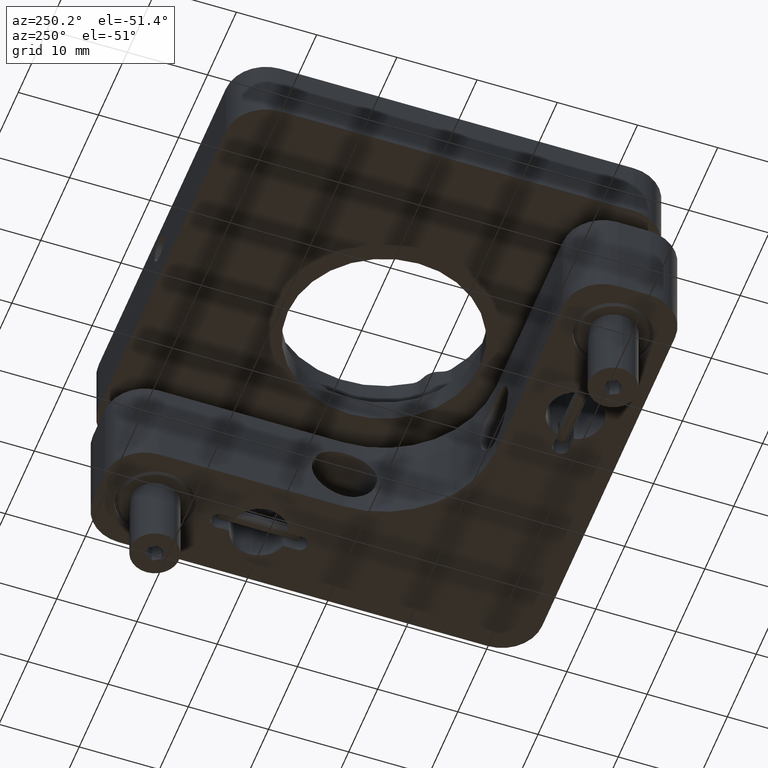
[diagram: clean part render]
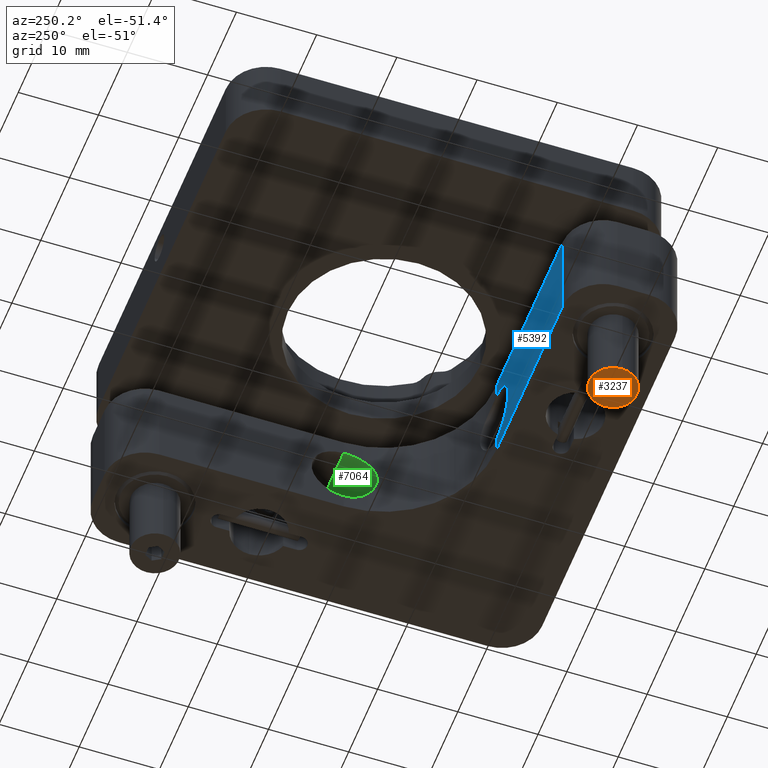
[diagram: same view with three faces highlighted in distinct colors, each labeled with its STEP entity id]
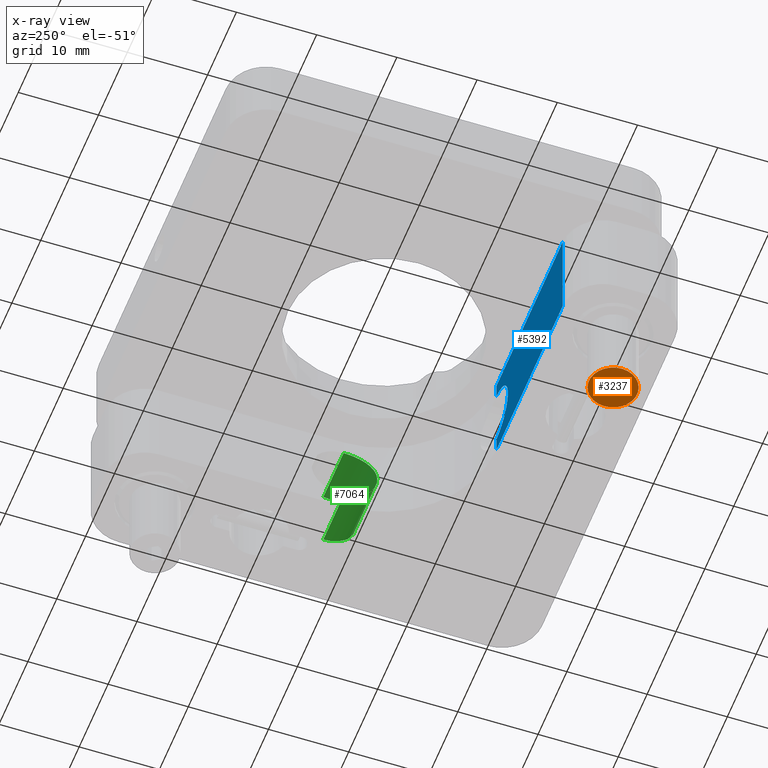
[diagram: x-ray of the same camera — body ghosted, the three highlighted faces saturated]
A machine part, auxiliary view with three faces highlighted in distinct colors.
The next image is the same camera in x-ray (body ghosted, the three faces saturated) — at least one of them is partly hidden behind the body in this view.
Their STEP definitions:

[orange] entity #3237 — the highlighted planar face has unit normal (0, -0, 1).
#194 = ORIENTED_EDGE ( 'NONE', *, *, #6239, .F. ) ;
#302 = CARTESIAN_POINT ( 'NONE',  ( -21.54732577608398714, -22.01674373770747906, -25.00041507641942573 ) ) ;
#385 = ORIENTED_EDGE ( 'NONE', *, *, #10376, .F. ) ;
#439 = DIRECTION ( 'NONE',  ( -0.5255587901632401415, 0.8507572850596998304, 2.996730767475920952E-16 ) ) ;
#499 = ORIENTED_EDGE ( 'NONE', *, *, #12246, .F. ) ;
#1207 = DIRECTION ( 'NONE',  ( -0.4739980262347597839, -0.8805259059934308352, -2.429688183113096349E-17 ) ) ;
#1275 = DIRECTION ( 'NONE',  ( -0.9995568163979993148, -0.02976862093373094931, 2.753761949164609561E-16 ) ) ;
#1389 = CARTESIAN_POINT ( 'NONE',  ( -21.00000000000000711, -20.99999999999998224, -25.00041507641942573 ) ) ;
#1980 = EDGE_CURVE ( 'NONE', #8191, #5781, #13173, .T. ) ;
#2049 = EDGE_CURVE ( 'NONE', #2216, #8191, #7707, .T. ) ;
#2216 = VERTEX_POINT ( 'NONE', #5864 ) ;
#2459 = LINE ( 'NONE', #10931, #12884 ) ;
#2724 = AXIS2_PLACEMENT_3D ( 'NONE', #4250, #8492, #5244 ) ;
#2755 = EDGE_LOOP ( 'NONE', ( #499, #12009, #8844, #194, #12710, #5176 ) ) ;
#2797 = CARTESIAN_POINT ( 'NONE',  ( -22.15418879403543073, -21.03437384261897236, -25.00041507641942573 ) ) ;
#2892 = CIRCLE ( 'NONE', #3351, 3.000000000000001776 ) ;
#3010 = VECTOR ( 'NONE', #439, 1000.000000000000000 ) ;
#3237 = ADVANCED_FACE ( 'NONE', ( #8559, #6356 ), #8428, .F. ) ;
#3298 = CARTESIAN_POINT ( 'NONE',  ( -19.84581120596458703, -20.96562615738099922, -25.00041507641942573 ) ) ;
#3345 = DIRECTION ( 'NONE',  ( 0.9995568163979994258, 0.02976862093373095972, 0.000000000000000000 ) ) ;
#3351 = AXIS2_PLACEMENT_3D ( 'NONE', #4668, #11827, #8899 ) ;
#3582 = EDGE_LOOP ( 'NONE', ( #4848, #385 ) ) ;
#3773 = VECTOR ( 'NONE', #1207, 999.9999999999998863 ) ;
#4186 = VERTEX_POINT ( 'NONE', #8389 ) ;
#4250 = CARTESIAN_POINT ( 'NONE',  ( -21.00000000000000711, -20.99999999999998224, -25.00041507641942573 ) ) ;
#4383 = CARTESIAN_POINT ( 'NONE',  ( -20.39313698204856706, -21.98236989508849248, -25.00041507641942573 ) ) ;
#4599 = EDGE_CURVE ( 'NONE', #4186, #12852, #2892, .T. ) ;
#4668 = CARTESIAN_POINT ( 'NONE',  ( -21.00000000000000711, -20.99999999999998224, -25.00041507641942573 ) ) ;
#4848 = ORIENTED_EDGE ( 'NONE', *, *, #4599, .F. ) ;
#5109 = VECTOR ( 'NONE', #11137, 1000.000000000000114 ) ;
#5176 = ORIENTED_EDGE ( 'NONE', *, *, #13100, .F. ) ;
#5244 = DIRECTION ( 'NONE',  ( 0.9995568163979993148, 0.02976862093373113666, -2.753761949164609068E-16 ) ) ;
#5470 = VECTOR ( 'NONE', #5618, 1000.000000000000000 ) ;
#5618 = DIRECTION ( 'NONE',  ( 0.4739980262347597284, 0.8805259059934308352, 2.429688183113096657E-17 ) ) ;
#5672 = LINE ( 'NONE', #9885, #5109 ) ;
#5768 = DIRECTION ( 'NONE',  ( 0.5255587901632398085, -0.8507572850597000524, -2.996730767475919966E-16 ) ) ;
#5781 = VERTEX_POINT ( 'NONE', #12063 ) ;
#5864 = CARTESIAN_POINT ( 'NONE',  ( -21.54732577608398714, -22.01674373770747906, -25.00041507641942573 ) ) ;
#6239 = EDGE_CURVE ( 'NONE', #11110, #2216, #2459, .T. ) ;
#6326 = EDGE_CURVE ( 'NONE', #10713, #11110, #7762, .T. ) ;
#6356 = FACE_OUTER_BOUND ( 'NONE', #3582, .T. ) ;
#7210 = CARTESIAN_POINT ( 'NONE',  ( -20.45267422391602707, -19.98325626229249252, -25.00041507641942573 ) ) ;
#7707 = LINE ( 'NONE', #302, #3010 ) ;
#7737 = DIRECTION ( 'NONE',  ( 2.808221988872256027E-16, -1.787636783372001058E-16, 1.000000000000000000 ) ) ;
#7762 = LINE ( 'NONE', #3298, #3773 ) ;
#8191 = VERTEX_POINT ( 'NONE', #2797 ) ;
#8224 = VECTOR ( 'NONE', #5768, 1000.000000000000000 ) ;
#8389 = CARTESIAN_POINT ( 'NONE',  ( -18.00132955080600894, -20.91069413719879222, -25.00041507641942573 ) ) ;
#8428 = PLANE ( 'NONE',  #2724 ) ;
#8492 = DIRECTION ( 'NONE',  ( 2.808221988872250604E-16, -1.787636783372001304E-16, 1.000000000000000000 ) ) ;
#8559 = FACE_BOUND ( 'NONE', #2755, .T. ) ;
#8844 = ORIENTED_EDGE ( 'NONE', *, *, #2049, .F. ) ;
#8899 = DIRECTION ( 'NONE',  ( 0.9995568163979994258, 0.02976862093373095972, 0.000000000000000000 ) ) ;
#9833 = CARTESIAN_POINT ( 'NONE',  ( -22.15418879403543073, -21.03437384261897236, -25.00041507641942573 ) ) ;
#9850 = CARTESIAN_POINT ( 'NONE',  ( -20.45267422391602707, -19.98325626229249252, -25.00041507641942573 ) ) ;
#9885 = CARTESIAN_POINT ( 'NONE',  ( -21.60686301795145070, -20.01763010491147909, -25.00041507641942573 ) ) ;
#10376 = EDGE_CURVE ( 'NONE', #12852, #4186, #13719, .T. ) ;
#10713 = VERTEX_POINT ( 'NONE', #12156 ) ;
#10931 = CARTESIAN_POINT ( 'NONE',  ( -20.39313698204856706, -21.98236989508849248, -25.00041507641942573 ) ) ;
#10983 = CARTESIAN_POINT ( 'NONE',  ( -23.99867044919400527, -21.08930586280117936, -25.00041507641942573 ) ) ;
#11110 = VERTEX_POINT ( 'NONE', #4383 ) ;
#11137 = DIRECTION ( 'NONE',  ( 0.9995568163979993148, 0.02976862093373113666, -2.753761949164609068E-16 ) ) ;
#11669 = VERTEX_POINT ( 'NONE', #7210 ) ;
#11827 = DIRECTION ( 'NONE',  ( 2.808221988872256027E-16, -1.787636783372001058E-16, 1.000000000000000000 ) ) ;
#12009 = ORIENTED_EDGE ( 'NONE', *, *, #1980, .F. ) ;
#12063 = CARTESIAN_POINT ( 'NONE',  ( -21.60686301795145070, -20.01763010491147909, -25.00041507641942573 ) ) ;
#12156 = CARTESIAN_POINT ( 'NONE',  ( -19.84581120596458703, -20.96562615738099922, -25.00041507641942573 ) ) ;
#12246 = EDGE_CURVE ( 'NONE', #5781, #11669, #5672, .T. ) ;
#12383 = AXIS2_PLACEMENT_3D ( 'NONE', #1389, #7737, #3345 ) ;
#12710 = ORIENTED_EDGE ( 'NONE', *, *, #6326, .F. ) ;
#12852 = VERTEX_POINT ( 'NONE', #10983 ) ;
#12884 = VECTOR ( 'NONE', #1275, 1000.000000000000114 ) ;
#12923 = LINE ( 'NONE', #9850, #8224 ) ;
#13100 = EDGE_CURVE ( 'NONE', #11669, #10713, #12923, .T. ) ;
#13173 = LINE ( 'NONE', #9833, #5470 ) ;
#13719 = CIRCLE ( 'NONE', #12383, 3.000000000000001776 ) ;

[blue] entity #5392 — the highlighted planar face has unit normal (0, 1, 0).
#323 = FACE_OUTER_BOUND ( 'NONE', #9322, .T. ) ;
#416 = CARTESIAN_POINT ( 'NONE',  ( -22.99999999999995381, -14.00000000000000178, -15.00000000000000355 ) ) ;
#849 = CARTESIAN_POINT ( 'NONE',  ( -3.003590182049984513E-17, -14.00000000000000000, -15.00000000000000355 ) ) ;
#2157 = VECTOR ( 'NONE', #13666, 1000.000000000000000 ) ;
#2203 = CARTESIAN_POINT ( 'NONE',  ( -22.99999999999995381, -14.00000000000000178, -15.00000000000000355 ) ) ;
#2739 = ORIENTED_EDGE ( 'NONE', *, *, #6044, .T. ) ;
#3023 = LINE ( 'NONE', #3169, #5780 ) ;
#3124 = ORIENTED_EDGE ( 'NONE', *, *, #11325, .F. ) ;
#3169 = CARTESIAN_POINT ( 'NONE',  ( -22.99999999999995381, -14.00000000000000000, -15.00000000000000355 ) ) ;
#3172 = CARTESIAN_POINT ( 'NONE',  ( -3.003590182049984513E-17, -14.00000000000000000, -3.000000000000002665 ) ) ;
#3363 = AXIS2_PLACEMENT_3D ( 'NONE', #7799, #12017, #5505 ) ;
#3527 = VECTOR ( 'NONE', #7312, 1000.000000000000000 ) ;
#3584 = EDGE_CURVE ( 'NONE', #9246, #3587, #6262, .T. ) ;
#3587 = VERTEX_POINT ( 'NONE', #12643 ) ;
#3850 = LINE ( 'NONE', #849, #5980 ) ;
#3973 = DIRECTION ( 'NONE',  ( 0.000000000000000000, 0.000000000000000000, 1.000000000000000000 ) ) ;
#4013 = CARTESIAN_POINT ( 'NONE',  ( -22.99999999999995381, -14.00000000000000000, -3.000000000000002665 ) ) ;
#4312 = ORIENTED_EDGE ( 'NONE', *, *, #11887, .F. ) ;
#4490 = VECTOR ( 'NONE', #7163, 1000.000000000000000 ) ;
#4573 = PLANE ( 'NONE',  #3363 ) ;
#4585 = VERTEX_POINT ( 'NONE', #10784 ) ;
#5175 = DIRECTION ( 'NONE',  ( -0.000000000000000000, -1.000000000000000000, -0.000000000000000000 ) ) ;
#5209 = LINE ( 'NONE', #2203, #2157 ) ;
#5312 = ORIENTED_EDGE ( 'NONE', *, *, #3584, .F. ) ;
#5392 = ADVANCED_FACE ( 'NONE', ( #323 ), #4573, .T. ) ;
#5505 = DIRECTION ( 'NONE',  ( 0.000000000000000000, -0.000000000000000000, 1.000000000000000000 ) ) ;
#5542 = CARTESIAN_POINT ( 'NONE',  ( -3.003590182049984513E-17, -13.99999999999999822, -13.00000000000000355 ) ) ;
#5780 = VECTOR ( 'NONE', #9272, 1000.000000000000000 ) ;
#5980 = VECTOR ( 'NONE', #13450, 1000.000000000000000 ) ;
#6044 = EDGE_CURVE ( 'NONE', #4585, #9726, #3023, .T. ) ;
#6262 = LINE ( 'NONE', #4013, #4490 ) ;
#7163 = DIRECTION ( 'NONE',  ( -1.000000000000000000, -0.000000000000000000, -0.000000000000000000 ) ) ;
#7312 = DIRECTION ( 'NONE',  ( 0.000000000000000000, 0.000000000000000000, 1.000000000000000000 ) ) ;
#7530 = CIRCLE ( 'NONE', #8617, 4.000000000000000000 ) ;
#7799 = CARTESIAN_POINT ( 'NONE',  ( -22.99999999999995381, -14.00000000000000000, -15.00000000000000355 ) ) ;
#8429 = CARTESIAN_POINT ( 'NONE',  ( -3.003590182049984513E-17, -13.99999999999999822, -9.000000000000003553 ) ) ;
#8517 = EDGE_CURVE ( 'NONE', #9726, #3587, #5209, .T. ) ;
#8617 = AXIS2_PLACEMENT_3D ( 'NONE', #8429, #5175, #3973 ) ;
#9246 = VERTEX_POINT ( 'NONE', #3172 ) ;
#9272 = DIRECTION ( 'NONE',  ( -1.000000000000000000, -0.000000000000000000, -0.000000000000000000 ) ) ;
#9322 = EDGE_LOOP ( 'NONE', ( #4312, #13768, #3124, #2739, #12286, #5312 ) ) ;
#9436 = VERTEX_POINT ( 'NONE', #5542 ) ;
#9726 = VERTEX_POINT ( 'NONE', #416 ) ;
#10009 = LINE ( 'NONE', #13623, #3527 ) ;
#10272 = EDGE_CURVE ( 'NONE', #12026, #9436, #7530, .T. ) ;
#10668 = CARTESIAN_POINT ( 'NONE',  ( -3.003590182049984513E-17, -13.99999999999999822, -5.000000000000002665 ) ) ;
#10784 = CARTESIAN_POINT ( 'NONE',  ( -3.003590182049984513E-17, -14.00000000000000000, -15.00000000000000355 ) ) ;
#11325 = EDGE_CURVE ( 'NONE', #4585, #9436, #10009, .T. ) ;
#11887 = EDGE_CURVE ( 'NONE', #12026, #9246, #3850, .T. ) ;
#12017 = DIRECTION ( 'NONE',  ( 0.000000000000000000, 1.000000000000000000, 0.000000000000000000 ) ) ;
#12026 = VERTEX_POINT ( 'NONE', #10668 ) ;
#12286 = ORIENTED_EDGE ( 'NONE', *, *, #8517, .T. ) ;
#12643 = CARTESIAN_POINT ( 'NONE',  ( -22.99999999999995381, -14.00000000000000178, -3.000000000000002665 ) ) ;
#13450 = DIRECTION ( 'NONE',  ( 0.000000000000000000, 0.000000000000000000, 1.000000000000000000 ) ) ;
#13623 = CARTESIAN_POINT ( 'NONE',  ( -3.003590182049984513E-17, -14.00000000000000000, -15.00000000000000355 ) ) ;
#13666 = DIRECTION ( 'NONE',  ( 0.000000000000000000, 0.000000000000000000, 1.000000000000000000 ) ) ;
#13768 = ORIENTED_EDGE ( 'NONE', *, *, #10272, .T. ) ;

[green] entity #7064 — the highlighted cylindrical surface (edge-blend (fillet) strip) has radius 4 mm, axis along (1, -0, -0).
#204 = CARTESIAN_POINT ( 'NONE',  ( 13.88874587474708022, -1.778186504998206852, -12.59258562958727445 ) ) ;
#298 = VERTEX_POINT ( 'NONE', #5156 ) ;
#406 = CARTESIAN_POINT ( 'NONE',  ( 13.42426151470659690, -3.973928279618702319, -9.526638360866579447 ) ) ;
#476 = CARTESIAN_POINT ( 'NONE',  ( 13.94192594928529161, -1.296731905514449501, -5.207024065111085953 ) ) ;
#958 = ORIENTED_EDGE ( 'NONE', *, *, #7488, .T. ) ;
#1148 = AXIS2_PLACEMENT_3D ( 'NONE', #4374, #3270, #2234 ) ;
#1251 = CARTESIAN_POINT ( 'NONE',  ( 14.00000000000000000, 1.901779485492735543E-15, -13.00000000000000178 ) ) ;
#1325 = CARTESIAN_POINT ( 'NONE',  ( 13.45414212209215776, -3.871551344183472132, -7.960870286123221007 ) ) ;
#1392 = CARTESIAN_POINT ( 'NONE',  ( 13.99244850018113517, -0.5266779375071534153, -12.97379308742473469 ) ) ;
#1526 = CARTESIAN_POINT ( 'NONE',  ( 14.00000000000000000, 1.901779485492735543E-15, -5.000000000000005329 ) ) ;
#1730 = EDGE_LOOP ( 'NONE', ( #11903, #6041, #958, #5160 ) ) ;
#1732 = CARTESIAN_POINT ( 'NONE',  ( 21.00000000000000000, 0.000000000000000000, -13.00000000000000178 ) ) ;
#2234 = DIRECTION ( 'NONE',  ( 0.000000000000000000, 0.000000000000000000, -1.000000000000000000 ) ) ;
#2442 = CARTESIAN_POINT ( 'NONE',  ( 13.74908823207572439, -2.645304200214632306, -12.01158405573234234 ) ) ;
#2577 = CARTESIAN_POINT ( 'NONE',  ( 13.99229242761561309, -0.5315044674720783568, -5.026747969633714064 ) ) ;
#2781 = AXIS2_PLACEMENT_3D ( 'NONE', #13475, #6051, #9501 ) ;
#2875 = CARTESIAN_POINT ( 'NONE',  ( 29.39007092198580295, 0.000000000000000000, -13.00000000000000178 ) ) ;
#3041 = FACE_OUTER_BOUND ( 'NONE', #1730, .T. ) ;
#3270 = DIRECTION ( 'NONE',  ( 1.000000000000000000, -0.000000000000000000, -0.000000000000000000 ) ) ;
#3426 = CARTESIAN_POINT ( 'NONE',  ( 29.39007092198580295, 4.898587196589409870E-16, -5.000000000000005329 ) ) ;
#3553 = CARTESIAN_POINT ( 'NONE',  ( 14.00000000000000000, -0.2656925048559733993, -13.00000000000000000 ) ) ;
#3622 = CARTESIAN_POINT ( 'NONE',  ( 13.53152284503525138, -3.592859246226273839, -10.77738034271075129 ) ) ;
#4374 = CARTESIAN_POINT ( 'NONE',  ( 21.00000000000000000, 0.000000000000000000, -9.000000000000003553 ) ) ;
#4460 = CARTESIAN_POINT ( 'NONE',  ( 13.85707990081641761, -2.007381552166231486, -12.46965339641102766 ) ) ;
#4527 = CARTESIAN_POINT ( 'NONE',  ( 13.63556036348728284, -3.177128451827486266, -11.44435474776599548 ) ) ;
#4589 = CARTESIAN_POINT ( 'NONE',  ( 13.67291008003549280, -3.014478909487929847, -6.357806763693138130 ) ) ;
#4639 = VECTOR ( 'NONE', #4973, 1000.000000000000000 ) ;
#4973 = DIRECTION ( 'NONE',  ( 1.000000000000000000, -0.000000000000000000, -0.000000000000000000 ) ) ;
#5156 = CARTESIAN_POINT ( 'NONE',  ( 21.00000000000000000, 4.898587196589409870E-16, -5.000000000000005329 ) ) ;
#5160 = ORIENTED_EDGE ( 'NONE', *, *, #11890, .F. ) ;
#5592 = CARTESIAN_POINT ( 'NONE',  ( 13.53117571701345945, -3.594189080255519197, -7.224895119188465387 ) ) ;
#5659 = CARTESIAN_POINT ( 'NONE',  ( 13.41633213603272345, -4.000254002805887055, -8.741554895105030809 ) ) ;
#5856 = VERTEX_POINT ( 'NONE', #6032 ) ;
#6032 = CARTESIAN_POINT ( 'NONE',  ( 14.00000000000000000, 1.901779485492735543E-15, -5.000000000000005329 ) ) ;
#6041 = ORIENTED_EDGE ( 'NONE', *, *, #6837, .T. ) ;
#6051 = DIRECTION ( 'NONE',  ( 1.000000000000000000, -0.000000000000000000, -0.000000000000000000 ) ) ;
#6622 = CARTESIAN_POINT ( 'NONE',  ( 13.42422468547091796, -3.974046004526941456, -8.474967880207369575 ) ) ;
#6695 = CARTESIAN_POINT ( 'NONE',  ( 13.47683005494410224, -3.792861682036379189, -10.29688808568371883 ) ) ;
#6832 = CARTESIAN_POINT ( 'NONE',  ( 14.00000000000000000, -0.2657086982105496542, -5.000000000000005329 ) ) ;
#6837 = EDGE_CURVE ( 'NONE', #5856, #298, #8507, .T. ) ;
#7064 = ADVANCED_FACE ( 'NONE', ( #3041 ), #8204, .F. ) ;
#7166 = CIRCLE ( 'NONE', #1148, 3.999999999999998224 ) ;
#7488 = EDGE_CURVE ( 'NONE', #298, #11248, #7166, .T. ) ;
#7549 = DIRECTION ( 'NONE',  ( 1.000000000000000000, -0.000000000000000000, -0.000000000000000000 ) ) ;
#7675 = CARTESIAN_POINT ( 'NONE',  ( 13.56410657494756755, -3.469533750978846864, -11.00782242321290383 ) ) ;
#7815 = CARTESIAN_POINT ( 'NONE',  ( 13.94215066161716088, -1.294466742960150407, -12.79380740204940992 ) ) ;
#7880 = CARTESIAN_POINT ( 'NONE',  ( 13.88864995381737621, -1.778824125781521825, -5.407791096419478194 ) ) ;
#8204 = CYLINDRICAL_SURFACE ( 'NONE', #2781, 3.999999999999998224 ) ;
#8507 = LINE ( 'NONE', #3426, #11049 ) ;
#8763 = CARTESIAN_POINT ( 'NONE',  ( 13.85625576759332667, -2.012962963995443832, -5.533645932257566180 ) ) ;
#8831 = CARTESIAN_POINT ( 'NONE',  ( 13.78660813301676136, -2.444847639018986829, -5.823468803969474195 ) ) ;
#8896 = CARTESIAN_POINT ( 'NONE',  ( 13.67342190674053981, -3.012074847234741171, -11.64474534711194131 ) ) ;
#9501 = DIRECTION ( 'NONE',  ( 0.000000000000000000, 0.000000000000000000, -1.000000000000000000 ) ) ;
#9734 = CARTESIAN_POINT ( 'NONE',  ( 13.96370391061652505, -1.039700811152284299, -12.87136195347459555 ) ) ;
#9805 = CARTESIAN_POINT ( 'NONE',  ( 13.63459152105524375, -3.181192866180117651, -6.561258604663749772 ) ) ;
#9872 = CARTESIAN_POINT ( 'NONE',  ( 13.47603777632076039, -3.795697206113587630, -7.710862613213605776 ) ) ;
#9938 = CARTESIAN_POINT ( 'NONE',  ( 13.45445197353499012, -3.870481272222657143, -10.04346952809518712 ) ) ;
#10917 = CARTESIAN_POINT ( 'NONE',  ( 13.41648472869261077, -3.999742191200191588, -9.266248686648001609 ) ) ;
#11049 = VECTOR ( 'NONE', #7549, 1000.000000000000000 ) ;
#11248 = VERTEX_POINT ( 'NONE', #1732 ) ;
#11361 = CARTESIAN_POINT ( 'NONE',  ( 14.00000000000000000, 1.901779485492735543E-15, -13.00000000000000178 ) ) ;
#11890 = EDGE_CURVE ( 'NONE', #11917, #11248, #12397, .T. ) ;
#11903 = ORIENTED_EDGE ( 'NONE', *, *, #12920, .T. ) ;
#11917 = VERTEX_POINT ( 'NONE', #11361 ) ;
#12093 = CARTESIAN_POINT ( 'NONE',  ( 13.96315642665532764, -1.047381011669526130, -5.130604477163555721 ) ) ;
#12397 = LINE ( 'NONE', #2875, #4639 ) ;
#12920 = EDGE_CURVE ( 'NONE', #11917, #5856, #13422, .T. ) ;
#12942 = CARTESIAN_POINT ( 'NONE',  ( 13.78728799883474565, -2.441092728835792425, -12.17948764369810277 ) ) ;
#13079 = CARTESIAN_POINT ( 'NONE',  ( 13.74913537915571737, -2.645152070889732254, -5.988117081359066063 ) ) ;
#13146 = CARTESIAN_POINT ( 'NONE',  ( 13.56400834463705785, -3.469834524077928695, -6.993087938977205376 ) ) ;
#13422 = B_SPLINE_CURVE_WITH_KNOTS ( 'NONE', 3,
 ( #1251, #3553, #1392, #9734, #7815, #204, #4460, #12942, #2442, #8896, #4527, #7675, #3622, #6695, #9938, #406, #10917, #5659, #6622, #1325, #9872, #5592, #13146, #9805, #4589, #13079, #8831, #8763, #7880, #476, #12093, #2577, #6832, #1526 ),
 .UNSPECIFIED., .F., .F.,
 ( 4, 2, 2, 2, 2, 2, 2, 2, 2, 2, 2, 2, 2, 2, 2, 2, 4 ),
 ( 1.846765261776856002E-18, 0.0007854640763440356261, 0.001570928152688069518, 0.002356392229032102867, 0.003141856305376136867, 0.003927320381720170867, 0.004712784458064203999, 0.005498248534408237999, 0.006283712610752271999, 0.007069176687096305998, 0.007854640763440339998, 0.008640104839784373131, 0.009425568916128406263, 0.01021103299247244113, 0.01099649706881647426, 0.01178196114516050913, 0.01256742522150454226 ),
 .UNSPECIFIED. ) ;
#13475 = CARTESIAN_POINT ( 'NONE',  ( 29.39007092198580295, 0.000000000000000000, -9.000000000000003553 ) ) ;